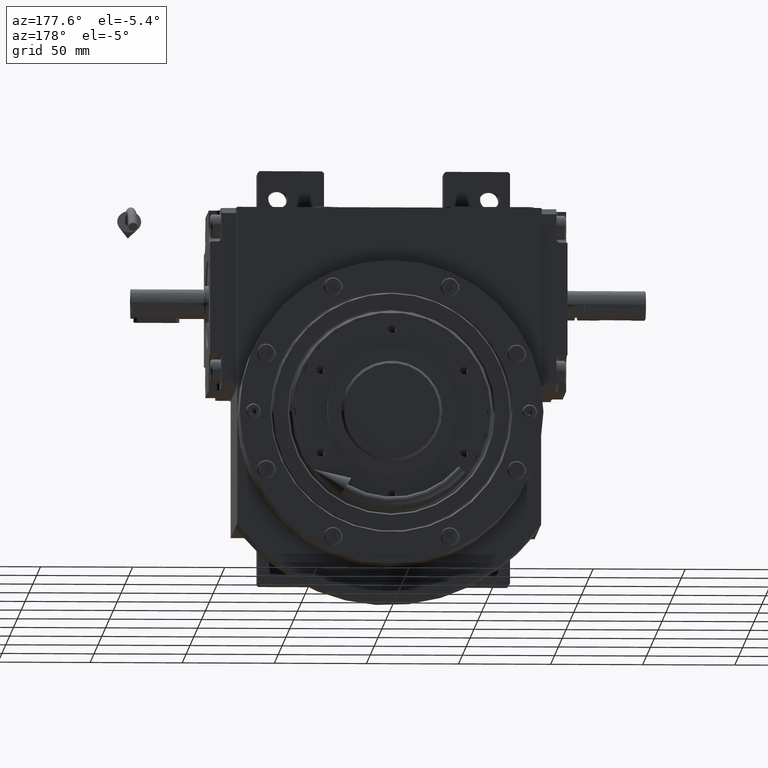
[diagram: clean part render]
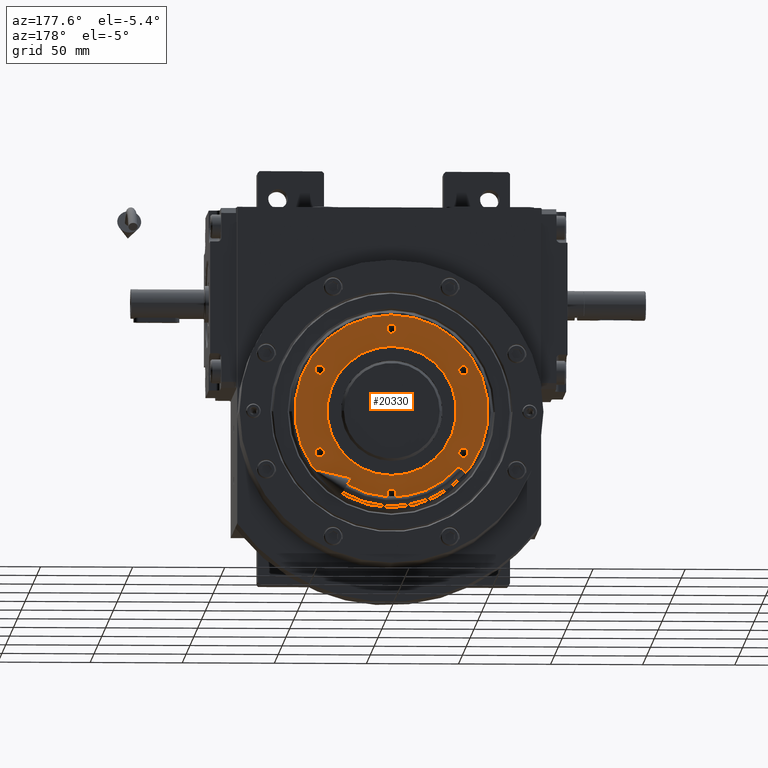
[diagram: same view with one face highlighted and labeled with its STEP entity id]
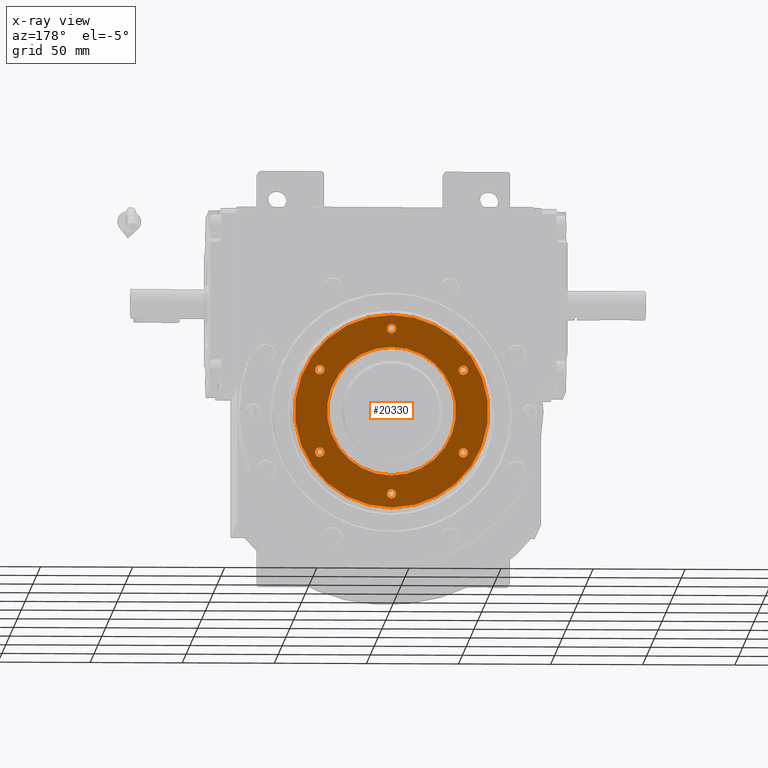
[diagram: x-ray of the same camera — body ghosted, the highlighted face saturated]
A machine part, auxiliary view. The second image highlights one B-rep face of the part: STEP entity #20330.
The next image is the same camera in x-ray: the body ghosted, the highlighted face saturated — about 0% of this face is hidden behind the body in this view.
In plain terms, the highlighted planar face has unit normal (0, -1, -0).
Its self-contained STEP definition (entity closure, byte-faithful):
#162 = VERTEX_POINT ( 'NONE', #26950 ) ;
#507 = CARTESIAN_POINT ( 'NONE',  ( 52.50000000000000000, 89.00000000000000000, 2.143131898515351383E-15 ) ) ;
#694 = VERTEX_POINT ( 'NONE', #37831 ) ;
#1068 = DIRECTION ( 'NONE',  ( -1.000000000000000000, 0.000000000000000000, 0.000000000000000000 ) ) ;
#1441 = CARTESIAN_POINT ( 'NONE',  ( -25.00000000000000000, 89.00000000000000000, -38.97114317030001729 ) ) ;
#1714 = DIRECTION ( 'NONE',  ( -1.000000000000000000, 0.000000000000000000, 0.000000000000000000 ) ) ;
#2212 = DIRECTION ( 'NONE',  ( 2.706829469562285187E-16, 1.000000000000000000, 6.062552332133027738E-33 ) ) ;
#3152 = ORIENTED_EDGE ( 'NONE', *, *, #13548, .F. ) ;
#3877 = CARTESIAN_POINT ( 'NONE',  ( -45.00000000000000000, 89.00000000000000000, 4.440892098500137068E-16 ) ) ;
#4010 = CARTESIAN_POINT ( 'NONE',  ( -52.50000000000000000, 89.00000000000000000, -4.286263797015911623E-15 ) ) ;
#4308 = CIRCLE ( 'NONE', #18801, 52.50000000000000000 ) ;
#4611 = DIRECTION ( 'NONE',  ( 0.000000000000000000, -1.000000000000000000, 1.685188701288034302E-33 ) ) ;
#4733 = ORIENTED_EDGE ( 'NONE', *, *, #53651, .F. ) ;
#4790 = ORIENTED_EDGE ( 'NONE', *, *, #54099, .F. ) ;
#4950 = DIRECTION ( 'NONE',  ( 0.000000000000000000, 1.000000000000000000, -1.685188701288034302E-33 ) ) ;
#4969 = CARTESIAN_POINT ( 'NONE',  ( 42.50000000000000000, 89.00000000000000000, -2.680204416053838929E-16 ) ) ;
#5041 = VERTEX_POINT ( 'NONE', #507 ) ;
#5600 = CIRCLE ( 'NONE', #53129, 52.50000000000000000 ) ;
#5796 = ORIENTED_EDGE ( 'NONE', *, *, #51236, .F. ) ;
#6110 = CIRCLE ( 'NONE', #28847, 35.00000000000000000 ) ;
#6141 = DIRECTION ( 'NONE',  ( -1.000000000000000000, 0.000000000000000000, 0.000000000000000000 ) ) ;
#6852 = EDGE_LOOP ( 'NONE', ( #20283, #45874 ) ) ;
#7116 = CARTESIAN_POINT ( 'NONE',  ( -45.00000000000000000, 89.00000000000000000, -1.972152263052529514E-28 ) ) ;
#7459 = CIRCLE ( 'NONE', #31209, 2.499999999999998668 ) ;
#7609 = CIRCLE ( 'NONE', #43750, 2.499999999999998668 ) ;
#7742 = CIRCLE ( 'NONE', #12877, 2.499999999999998668 ) ;
#8057 = CARTESIAN_POINT ( 'NONE',  ( -20.00000000000000000, 89.00000000000000000, 38.97114317029949149 ) ) ;
#8281 = DIRECTION ( 'NONE',  ( -1.000000000000000000, 0.000000000000000000, 0.000000000000000000 ) ) ;
#8426 = CARTESIAN_POINT ( 'NONE',  ( 47.50000000000000000, 89.00000000000000000, 7.494178599599612151E-27 ) ) ;
#9527 = DIRECTION ( 'NONE',  ( 1.000000000000000000, 0.000000000000000000, 0.000000000000000000 ) ) ;
#9538 = ORIENTED_EDGE ( 'NONE', *, *, #44937, .F. ) ;
#9696 = DIRECTION ( 'NONE',  ( 1.000000000000000000, 0.000000000000000000, -1.776356839400242675E-16 ) ) ;
#9979 = FACE_BOUND ( 'NONE', #22243, .T. ) ;
#10309 = CARTESIAN_POINT ( 'NONE',  ( 20.00000000000000000, 89.00000000000000000, -38.97114317029975439 ) ) ;
#11656 = EDGE_LOOP ( 'NONE', ( #4733, #4790 ) ) ;
#12647 = VERTEX_POINT ( 'NONE', #30654 ) ;
#12877 = AXIS2_PLACEMENT_3D ( 'NONE', #35127, #39971, #23901 ) ;
#12984 = CIRCLE ( 'NONE', #49131, 2.499999999999998668 ) ;
#13241 = DIRECTION ( 'NONE',  ( 0.000000000000000000, 1.000000000000000000, -1.685188701288034302E-33 ) ) ;
#13548 = EDGE_CURVE ( 'NONE', #57874, #34342, #48803, .T. ) ;
#13835 = EDGE_CURVE ( 'NONE', #51002, #16485, #7609, .T. ) ;
#14301 = CARTESIAN_POINT ( 'NONE',  ( 22.50000000000000000, 89.00000000000000000, 38.97114317029975439 ) ) ;
#14946 = VERTEX_POINT ( 'NONE', #40370 ) ;
#15167 = AXIS2_PLACEMENT_3D ( 'NONE', #56231, #37117, #56840 ) ;
#15487 = VERTEX_POINT ( 'NONE', #52565 ) ;
#16485 = VERTEX_POINT ( 'NONE', #59721 ) ;
#16497 = ORIENTED_EDGE ( 'NONE', *, *, #17762, .F. ) ;
#16986 = DIRECTION ( 'NONE',  ( 0.000000000000000000, 1.000000000000000000, -1.685188701288034302E-33 ) ) ;
#17100 = CARTESIAN_POINT ( 'NONE',  ( -22.50000000000000000, 89.00000000000000000, -38.97114317030001729 ) ) ;
#17762 = EDGE_CURVE ( 'NONE', #34342, #57874, #46124, .T. ) ;
#18000 = EDGE_CURVE ( 'NONE', #12647, #61127, #60623, .T. ) ;
#18116 = DIRECTION ( 'NONE',  ( 0.000000000000000000, 1.000000000000000000, -1.685188701288034302E-33 ) ) ;
#18801 = AXIS2_PLACEMENT_3D ( 'NONE', #31005, #2212, #54956 ) ;
#19910 = VERTEX_POINT ( 'NONE', #4010 ) ;
#20283 = ORIENTED_EDGE ( 'NONE', *, *, #53839, .F. ) ;
#20297 = DIRECTION ( 'NONE',  ( -2.706829469562285187E-16, -1.000000000000000000, -6.062552332133027738E-33 ) ) ;
#20330 = ADVANCED_FACE ( 'NONE', ( #30021, #54611, #30357, #9979, #54292, #44584, #29708, #59776 ), #32179, .F. ) ;
#22243 = EDGE_LOOP ( 'NONE', ( #33593, #61473 ) ) ;
#22259 = AXIS2_PLACEMENT_3D ( 'NONE', #61318, #16986, #52885 ) ;
#22650 = CARTESIAN_POINT ( 'NONE',  ( 45.00000000000000000, 89.00000000000000000, 7.494178599599612151E-27 ) ) ;
#23603 = EDGE_CURVE ( 'NONE', #16485, #51002, #7459, .T. ) ;
#23740 = VERTEX_POINT ( 'NONE', #8057 ) ;
#23889 = DIRECTION ( 'NONE',  ( 1.000000000000000000, -2.643388153869420311E-16, 0.000000000000000000 ) ) ;
#23901 = DIRECTION ( 'NONE',  ( -1.000000000000000000, 0.000000000000000000, 0.000000000000000000 ) ) ;
#26891 = ORIENTED_EDGE ( 'NONE', *, *, #18000, .F. ) ;
#26950 = CARTESIAN_POINT ( 'NONE',  ( -35.00000000000000000, 89.00000000000000000, -5.715018396020886806E-15 ) ) ;
#27126 = AXIS2_PLACEMENT_3D ( 'NONE', #14301, #58620, #39519 ) ;
#27584 = CIRCLE ( 'NONE', #63713, 2.499999999999998668 ) ;
#28442 = DIRECTION ( 'NONE',  ( -1.000000000000000000, 0.000000000000000000, 0.000000000000000000 ) ) ;
#28615 = DIRECTION ( 'NONE',  ( 0.000000000000000000, 1.000000000000000000, -1.685188701288034302E-33 ) ) ;
#28847 = AXIS2_PLACEMENT_3D ( 'NONE', #33102, #4611, #59581 ) ;
#29138 = EDGE_CURVE ( 'NONE', #5041, #19910, #5600, .T. ) ;
#29708 = FACE_OUTER_BOUND ( 'NONE', #57959, .T. ) ;
#30021 = FACE_BOUND ( 'NONE', #11656, .T. ) ;
#30339 = ORIENTED_EDGE ( 'NONE', *, *, #29138, .F. ) ;
#30357 = FACE_BOUND ( 'NONE', #60320, .T. ) ;
#30654 = CARTESIAN_POINT ( 'NONE',  ( -42.50000000000000000, 89.00000000000000000, 1.836909530733676328E-15 ) ) ;
#31005 = CARTESIAN_POINT ( 'NONE',  ( 1.776356839400252042E-14, 89.00000000000000000, 7.494178599599612151E-27 ) ) ;
#31209 = AXIS2_PLACEMENT_3D ( 'NONE', #17100, #35898, #31360 ) ;
#31360 = DIRECTION ( 'NONE',  ( 1.000000000000000000, 0.000000000000000000, 0.000000000000000000 ) ) ;
#32179 = PLANE ( 'NONE',  #57708 ) ;
#32551 = AXIS2_PLACEMENT_3D ( 'NONE', #63520, #28615, #9527 ) ;
#32721 = AXIS2_PLACEMENT_3D ( 'NONE', #22650, #18116, #41440 ) ;
#33102 = CARTESIAN_POINT ( 'NONE',  ( 2.486899575160352859E-14, 89.00000000000000000, 7.494178599599612151E-27 ) ) ;
#33593 = ORIENTED_EDGE ( 'NONE', *, *, #40273, .F. ) ;
#34342 = VERTEX_POINT ( 'NONE', #8426 ) ;
#34979 = ORIENTED_EDGE ( 'NONE', *, *, #23603, .F. ) ;
#35127 = CARTESIAN_POINT ( 'NONE',  ( 22.50000000000000000, 89.00000000000000000, -38.97114317029975439 ) ) ;
#35541 = CARTESIAN_POINT ( 'NONE',  ( 1.635767019581042183E-14, 89.00000000000000000, 7.494178599599612151E-27 ) ) ;
#35898 = DIRECTION ( 'NONE',  ( 0.000000000000000000, 1.000000000000000000, -1.685188701288034302E-33 ) ) ;
#36326 = CARTESIAN_POINT ( 'NONE',  ( 45.00000000000000000, 89.00000000000000000, 7.494178599599612151E-27 ) ) ;
#36366 = VERTEX_POINT ( 'NONE', #48859 ) ;
#36638 = DIRECTION ( 'NONE',  ( 0.000000000000000000, 1.000000000000000000, -1.685188701288034302E-33 ) ) ;
#37117 = DIRECTION ( 'NONE',  ( 0.000000000000000000, 1.000000000000000000, -1.685188701288034302E-33 ) ) ;
#37569 = EDGE_LOOP ( 'NONE', ( #41328, #5796 ) ) ;
#37831 = CARTESIAN_POINT ( 'NONE',  ( -25.00000000000000000, 89.00000000000000000, 38.97114317029949149 ) ) ;
#38088 = CARTESIAN_POINT ( 'NONE',  ( -47.50000000000000000, 89.00000000000000000, 1.568889089120798256E-15 ) ) ;
#39071 = CARTESIAN_POINT ( 'NONE',  ( 1.776356839400252042E-14, 89.00000000000000000, 7.494178599599612151E-27 ) ) ;
#39399 = DIRECTION ( 'NONE',  ( -1.836909530733564901E-16, -1.000000000000000000, -5.954631203350559886E-33 ) ) ;
#39519 = DIRECTION ( 'NONE',  ( 1.000000000000000000, 0.000000000000000000, 0.000000000000000000 ) ) ;
#39971 = DIRECTION ( 'NONE',  ( 0.000000000000000000, 1.000000000000000000, -1.685188701288034302E-33 ) ) ;
#40273 = EDGE_CURVE ( 'NONE', #694, #23740, #27584, .T. ) ;
#40370 = CARTESIAN_POINT ( 'NONE',  ( 25.00000000000000000, 89.00000000000000000, -38.97114317029975439 ) ) ;
#40421 = DIRECTION ( 'NONE',  ( 0.000000000000000000, 1.000000000000000000, -1.685188701288034302E-33 ) ) ;
#41170 = CIRCLE ( 'NONE', #62820, 2.500000000000002220 ) ;
#41328 = ORIENTED_EDGE ( 'NONE', *, *, #60434, .F. ) ;
#41440 = DIRECTION ( 'NONE',  ( 1.000000000000000000, 0.000000000000000000, 0.000000000000000000 ) ) ;
#41632 = CIRCLE ( 'NONE', #27126, 2.499999999999998668 ) ;
#41888 = ORIENTED_EDGE ( 'NONE', *, *, #13835, .F. ) ;
#41951 = EDGE_CURVE ( 'NONE', #23740, #694, #42077, .T. ) ;
#42077 = CIRCLE ( 'NONE', #15167, 2.499999999999998668 ) ;
#43349 = DIRECTION ( 'NONE',  ( 0.000000000000000000, 1.000000000000000000, -1.685188701288034302E-33 ) ) ;
#43750 = AXIS2_PLACEMENT_3D ( 'NONE', #45372, #4950, #1068 ) ;
#44146 = EDGE_CURVE ( 'NONE', #47671, #162, #6110, .T. ) ;
#44584 = FACE_BOUND ( 'NONE', #56654, .T. ) ;
#44937 = EDGE_CURVE ( 'NONE', #61127, #12647, #41170, .T. ) ;
#45372 = CARTESIAN_POINT ( 'NONE',  ( -22.50000000000000000, 89.00000000000000000, -38.97114317030001729 ) ) ;
#45766 = AXIS2_PLACEMENT_3D ( 'NONE', #36326, #36638, #1714 ) ;
#45874 = ORIENTED_EDGE ( 'NONE', *, *, #44146, .T. ) ;
#46124 = CIRCLE ( 'NONE', #32721, 2.500000000000002220 ) ;
#47671 = VERTEX_POINT ( 'NONE', #54653 ) ;
#48669 = EDGE_CURVE ( 'NONE', #5041, #19910, #4308, .T. ) ;
#48803 = CIRCLE ( 'NONE', #45766, 2.500000000000002220 ) ;
#48859 = CARTESIAN_POINT ( 'NONE',  ( 25.00000000000000000, 89.00000000000000000, 38.97114317029975439 ) ) ;
#49131 = AXIS2_PLACEMENT_3D ( 'NONE', #62282, #52588, #8281 ) ;
#51002 = VERTEX_POINT ( 'NONE', #1441 ) ;
#51236 = EDGE_CURVE ( 'NONE', #36366, #15487, #41632, .T. ) ;
#52565 = CARTESIAN_POINT ( 'NONE',  ( 20.00000000000000000, 89.00000000000000000, 38.97114317029975439 ) ) ;
#52588 = DIRECTION ( 'NONE',  ( 0.000000000000000000, 1.000000000000000000, -1.685188701288034302E-33 ) ) ;
#52712 = CARTESIAN_POINT ( 'NONE',  ( -22.50000000000000000, 89.00000000000000000, 38.97114317029949149 ) ) ;
#52885 = DIRECTION ( 'NONE',  ( 1.000000000000000000, 0.000000000000000000, -8.054753030243562461E-17 ) ) ;
#53129 = AXIS2_PLACEMENT_3D ( 'NONE', #39071, #20297, #23889 ) ;
#53651 = EDGE_CURVE ( 'NONE', #55138, #14946, #7742, .T. ) ;
#53839 = EDGE_CURVE ( 'NONE', #47671, #162, #58402, .T. ) ;
#54099 = EDGE_CURVE ( 'NONE', #14946, #55138, #62517, .T. ) ;
#54292 = FACE_BOUND ( 'NONE', #37569, .T. ) ;
#54381 = AXIS2_PLACEMENT_3D ( 'NONE', #3877, #43349, #9696 ) ;
#54611 = FACE_BOUND ( 'NONE', #55000, .T. ) ;
#54653 = CARTESIAN_POINT ( 'NONE',  ( 35.00000000000000000, 89.00000000000000000, 4.286263797015911623E-15 ) ) ;
#54956 = DIRECTION ( 'NONE',  ( 1.000000000000000000, -2.643388153869420311E-16, 0.000000000000000000 ) ) ;
#55000 = EDGE_LOOP ( 'NONE', ( #41888, #34979 ) ) ;
#55138 = VERTEX_POINT ( 'NONE', #10309 ) ;
#55754 = ORIENTED_EDGE ( 'NONE', *, *, #48669, .T. ) ;
#56231 = CARTESIAN_POINT ( 'NONE',  ( -22.50000000000000000, 89.00000000000000000, 38.97114317029949149 ) ) ;
#56654 = EDGE_LOOP ( 'NONE', ( #3152, #16497 ) ) ;
#56840 = DIRECTION ( 'NONE',  ( 1.000000000000000000, 0.000000000000000000, 0.000000000000000000 ) ) ;
#57708 = AXIS2_PLACEMENT_3D ( 'NONE', #35541, #39399, #59450 ) ;
#57874 = VERTEX_POINT ( 'NONE', #4969 ) ;
#57959 = EDGE_LOOP ( 'NONE', ( #30339, #55754 ) ) ;
#58402 = CIRCLE ( 'NONE', #22259, 35.00000000000000000 ) ;
#58620 = DIRECTION ( 'NONE',  ( 0.000000000000000000, 1.000000000000000000, -1.685188701288034302E-33 ) ) ;
#59450 = DIRECTION ( 'NONE',  ( -1.000000000000000000, 1.836909530733564901E-16, 0.000000000000000000 ) ) ;
#59581 = DIRECTION ( 'NONE',  ( 1.000000000000000000, 0.000000000000000000, 1.224646799147351728E-16 ) ) ;
#59721 = CARTESIAN_POINT ( 'NONE',  ( -20.00000000000000000, 89.00000000000000000, -38.97114317030001729 ) ) ;
#59776 = FACE_BOUND ( 'NONE', #6852, .T. ) ;
#60320 = EDGE_LOOP ( 'NONE', ( #9538, #26891 ) ) ;
#60434 = EDGE_CURVE ( 'NONE', #15487, #36366, #12984, .T. ) ;
#60623 = CIRCLE ( 'NONE', #54381, 2.500000000000002220 ) ;
#61127 = VERTEX_POINT ( 'NONE', #38088 ) ;
#61318 = CARTESIAN_POINT ( 'NONE',  ( 2.131628207280341894E-14, 89.00000000000000000, 7.105427357608502348E-15 ) ) ;
#61473 = ORIENTED_EDGE ( 'NONE', *, *, #41951, .F. ) ;
#62282 = CARTESIAN_POINT ( 'NONE',  ( 22.50000000000000000, 89.00000000000000000, 38.97114317029975439 ) ) ;
#62517 = CIRCLE ( 'NONE', #32551, 2.499999999999998668 ) ;
#62820 = AXIS2_PLACEMENT_3D ( 'NONE', #7116, #40421, #6141 ) ;
#63520 = CARTESIAN_POINT ( 'NONE',  ( 22.50000000000000000, 89.00000000000000000, -38.97114317029975439 ) ) ;
#63713 = AXIS2_PLACEMENT_3D ( 'NONE', #52712, #13241, #28442 ) ;